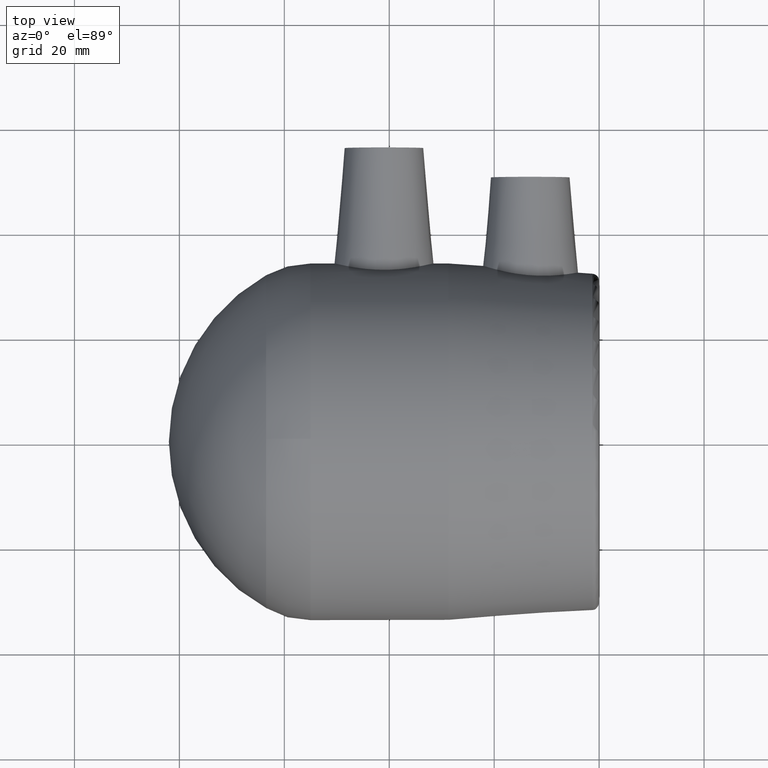
[diagram: clean part render]
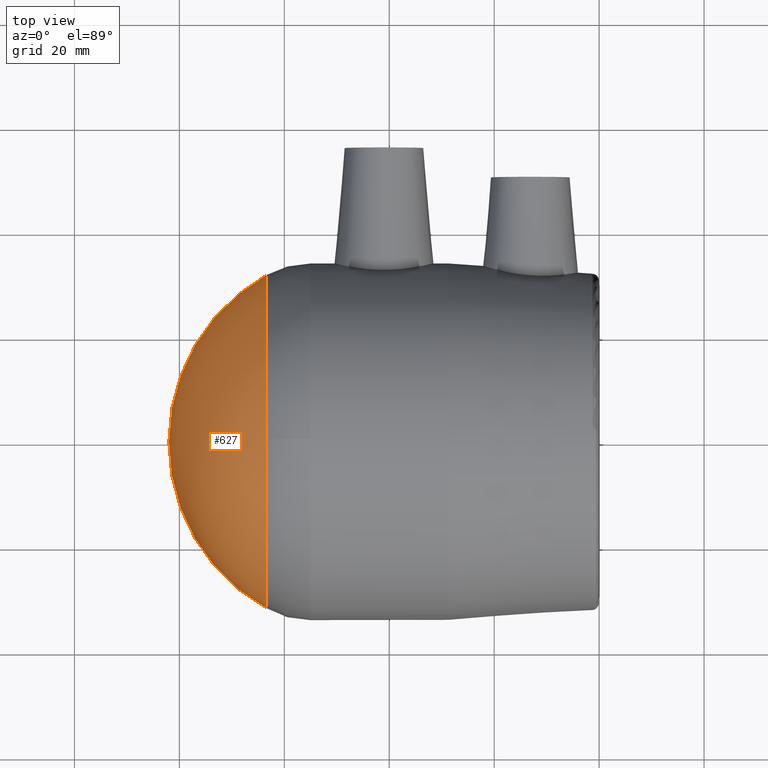
[diagram: same view with one face highlighted and labeled with its STEP entity id]
A machine part, top view. The second image highlights one B-rep face of the part: STEP entity #627.
In plain terms, the highlighted spherical surface has radius 36.5 mm.
Its self-contained STEP definition (entity closure, byte-faithful):
#58=SPHERICAL_SURFACE('',#720,36.5);
#153=FACE_OUTER_BOUND('',#220,.T.);
#220=EDGE_LOOP('',(#557,#558));
#264=CIRCLE('',#713,31.7720207253886);
#265=CIRCLE('',#714,31.7720207253886);
#321=VERTEX_POINT('',#1241);
#322=VERTEX_POINT('',#1245);
#399=EDGE_CURVE('',#321,#322,#264,.T.);
#400=EDGE_CURVE('',#322,#321,#265,.T.);
#557=ORIENTED_EDGE('',*,*,#400,.F.);
#558=ORIENTED_EDGE('',*,*,#399,.F.);
#627=ADVANCED_FACE('',(#153),#58,.T.);
#713=AXIS2_PLACEMENT_3D('',#1246,#909,#910);
#714=AXIS2_PLACEMENT_3D('',#1247,#911,#912);
#720=AXIS2_PLACEMENT_3D('',#1255,#923,#924);
#909=DIRECTION('center_axis',(1.,-6.52773886424224E-18,0.));
#910=DIRECTION('ref_axis',(0.,0.,-1.));
#911=DIRECTION('center_axis',(1.,-6.52773886424224E-18,0.));
#912=DIRECTION('ref_axis',(0.,0.,-1.));
#923=DIRECTION('center_axis',(0.,0.,1.));
#924=DIRECTION('ref_axis',(1.,0.,0.));
#1241=CARTESIAN_POINT('',(-63.4663212435233,4.1429157175183E-16,31.7720207253886));
#1245=CARTESIAN_POINT('',(-63.4663212435233,31.7720207253886,0.));
#1246=CARTESIAN_POINT('Origin',(-63.4663212435233,4.1429157175183E-16,0.));
#1247=CARTESIAN_POINT('Origin',(-63.4663212435233,4.1429157175183E-16,0.));
#1255=CARTESIAN_POINT('Origin',(-45.5,5.35274586867864E-16,0.));